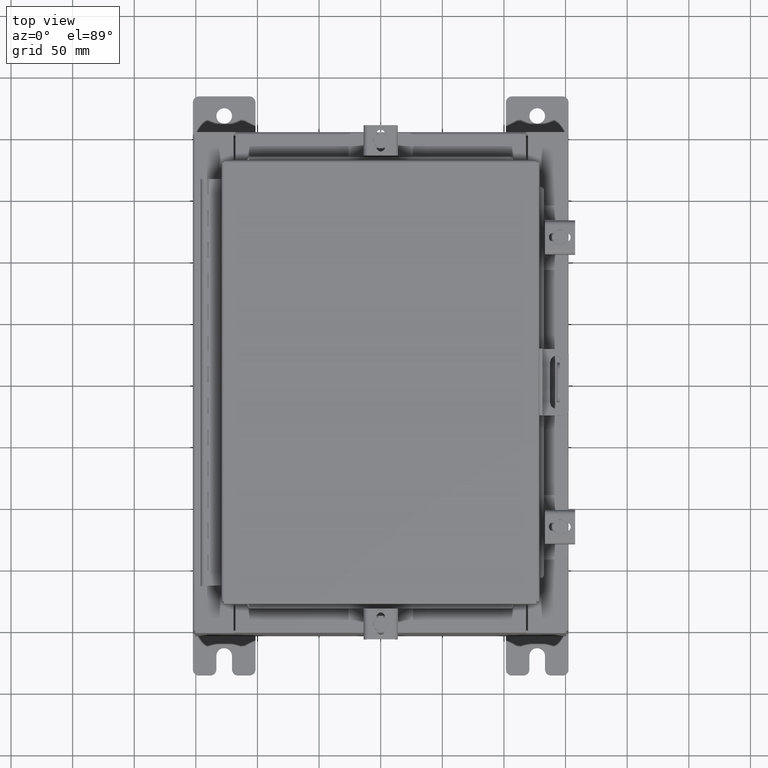
[diagram: clean part render]
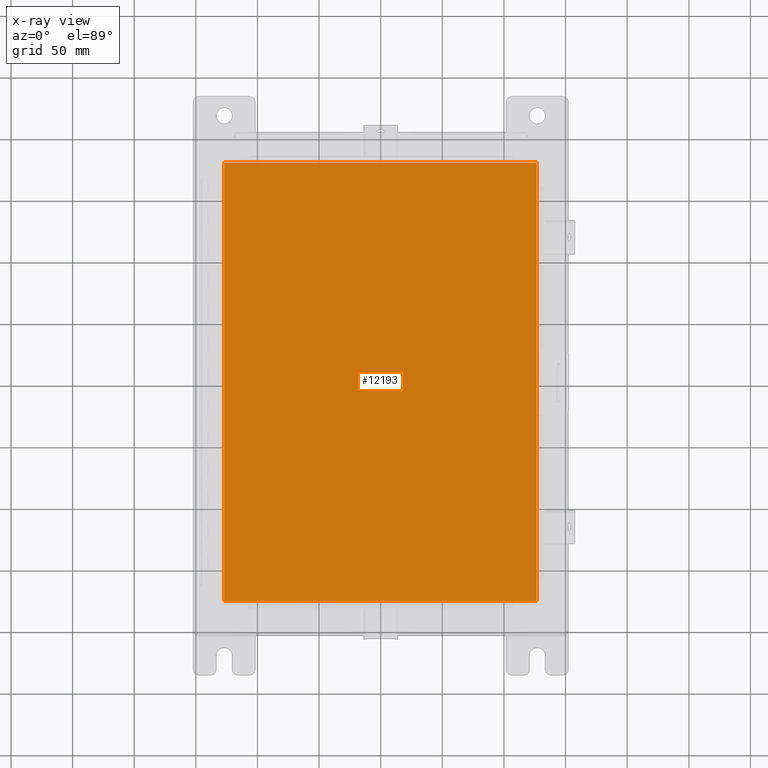
[diagram: x-ray — body ghosted, one internal face saturated and labeled with its STEP entity id]
A machine part, top view, then the same camera in x-ray: the body is ghosted and one INTERNAL B-rep face — a face not visible from any outside direction — is saturated and labeled: STEP entity #12193.
In plain terms, the highlighted planar face has unit normal (0, 0, -1).
Its self-contained STEP definition (entity closure, byte-faithful):
#1040 = ORIENTED_EDGE ( 'NONE', *, *, #20895, .F. ) ;
#1304 = CARTESIAN_POINT ( 'NONE',  ( 0.0000000000000000000, 0.0000000000000000000, -0.07470000000000000300 ) ) ;
#2625 = EDGE_LOOP ( 'NONE', ( #6004, #1040, #7138, #7951 ) ) ;
#2982 = CARTESIAN_POINT ( 'NONE',  ( -4.990300000000000400, 7.006299999999998600, -0.07470000000000000300 ) ) ;
#3330 = DIRECTION ( 'NONE',  ( -1.000000000000000000, 0.0000000000000000000, -0.0000000000000000000 ) ) ;
#5072 = DIRECTION ( 'NONE',  ( -1.000000000000000000, -0.0000000000000000000, -0.0000000000000000000 ) ) ;
#6004 = ORIENTED_EDGE ( 'NONE', *, *, #24096, .F. ) ;
#6092 = VECTOR ( 'NONE', #11659, 39.37007874015748100 ) ;
#6701 = VERTEX_POINT ( 'NONE', #25207 ) ;
#7138 = ORIENTED_EDGE ( 'NONE', *, *, #18931, .F. ) ;
#7289 = CARTESIAN_POINT ( 'NONE',  ( 4.990299999999998600, -7.006300000000000400, -0.07470000000000000300 ) ) ;
#7816 = VERTEX_POINT ( 'NONE', #7289 ) ;
#7951 = ORIENTED_EDGE ( 'NONE', *, *, #9457, .F. ) ;
#9368 = LINE ( 'NONE', #23220, #20071 ) ;
#9457 = EDGE_CURVE ( 'NONE', #21909, #26010, #9368, .T. ) ;
#9704 = CARTESIAN_POINT ( 'NONE',  ( 4.990299999999998600, -7.006300000000000400, -0.07469999999999965600 ) ) ;
#10176 = FACE_OUTER_BOUND ( 'NONE', #2625, .T. ) ;
#10234 = VECTOR ( 'NONE', #19739, 39.37007874015748100 ) ;
#11659 = DIRECTION ( 'NONE',  ( 0.0000000000000000000, -1.000000000000000000, 0.0000000000000000000 ) ) ;
#11917 = CARTESIAN_POINT ( 'NONE',  ( -4.990300000000000400, -7.006300000000000400, -0.07470000000000019700 ) ) ;
#12193 = ADVANCED_FACE ( 'NONE', ( #10176 ), #21358, .T. ) ;
#15348 = DIRECTION ( 'NONE',  ( 0.0000000000000000000, 0.0000000000000000000, -1.000000000000000000 ) ) ;
#15398 = CARTESIAN_POINT ( 'NONE',  ( 4.990299999999997700, 7.006300000000000400, -0.07470000000000000300 ) ) ;
#17430 = LINE ( 'NONE', #21709, #6092 ) ;
#18621 = AXIS2_PLACEMENT_3D ( 'NONE', #1304, #15348, #3330 ) ;
#18931 = EDGE_CURVE ( 'NONE', #26010, #6701, #17430, .T. ) ;
#19739 = DIRECTION ( 'NONE',  ( 0.0000000000000000000, 1.000000000000000000, 0.0000000000000000000 ) ) ;
#19804 = LINE ( 'NONE', #11917, #24526 ) ;
#20071 = VECTOR ( 'NONE', #5072, 39.37007874015748100 ) ;
#20895 = EDGE_CURVE ( 'NONE', #6701, #7816, #19804, .T. ) ;
#21358 = PLANE ( 'NONE',  #18621 ) ;
#21709 = CARTESIAN_POINT ( 'NONE',  ( -4.990300000000000400, 7.006300000000000400, -0.07470000000000019700 ) ) ;
#21909 = VERTEX_POINT ( 'NONE', #15398 ) ;
#23220 = CARTESIAN_POINT ( 'NONE',  ( 4.990299999999998600, 7.006300000000000400, -0.07470000000000019700 ) ) ;
#23986 = DIRECTION ( 'NONE',  ( 1.000000000000000000, -0.0000000000000000000, -0.0000000000000000000 ) ) ;
#24096 = EDGE_CURVE ( 'NONE', #7816, #21909, #25665, .T. ) ;
#24526 = VECTOR ( 'NONE', #23986, 39.37007874015748100 ) ;
#25207 = CARTESIAN_POINT ( 'NONE',  ( -4.990299999999999500, -7.006300000000000400, -0.07470000000000000300 ) ) ;
#25665 = LINE ( 'NONE', #9704, #10234 ) ;
#26010 = VERTEX_POINT ( 'NONE', #2982 ) ;